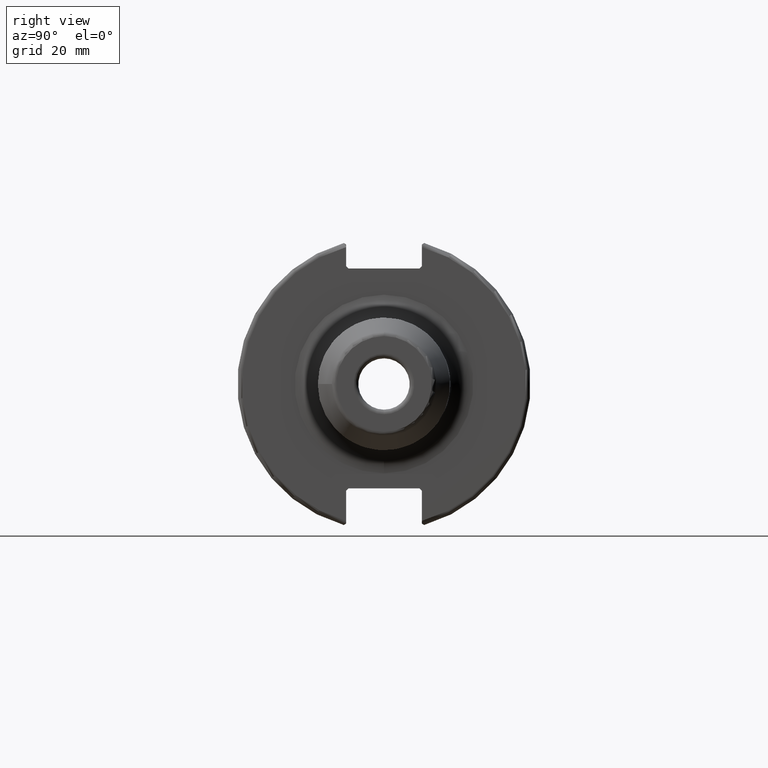
[diagram: clean part render]
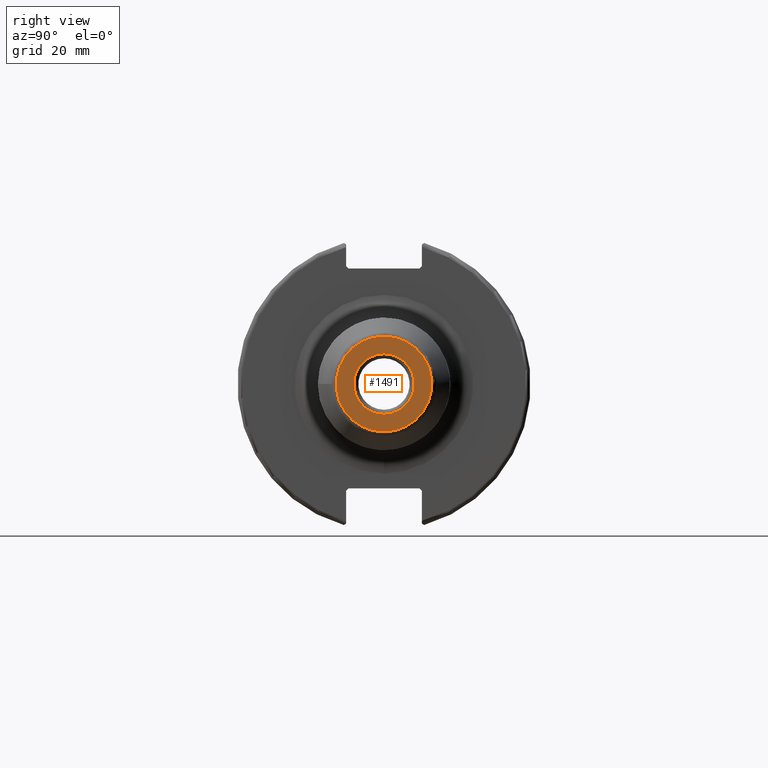
[diagram: same view with one face highlighted and labeled with its STEP entity id]
A machine part, right view. The second image highlights one B-rep face of the part: STEP entity #1491.
In plain terms, the highlighted planar face has unit normal (1, 0, 0).
Its self-contained STEP definition (entity closure, byte-faithful):
#307=FACE_BOUND('',#445,.T.);
#323=PLANE('',#1603);
#359=FACE_OUTER_BOUND('',#444,.T.);
#444=EDGE_LOOP('',(#1015));
#445=EDGE_LOOP('',(#1016));
#544=CIRCLE('',#1599,6.55625);
#548=CIRCLE('',#1604,10.3629297391925);
#619=VERTEX_POINT('',#2228);
#622=VERTEX_POINT('',#2236);
#775=EDGE_CURVE('',#619,#619,#544,.T.);
#779=EDGE_CURVE('',#622,#622,#548,.T.);
#1015=ORIENTED_EDGE('',*,*,#779,.F.);
#1016=ORIENTED_EDGE('',*,*,#775,.F.);
#1491=ADVANCED_FACE('',(#359,#307),#323,.T.);
#1599=AXIS2_PLACEMENT_3D('',#2229,#1780,#1781);
#1603=AXIS2_PLACEMENT_3D('',#2235,#1788,#1789);
#1604=AXIS2_PLACEMENT_3D('',#2237,#1790,#1791);
#1780=DIRECTION('center_axis',(1.,0.,0.));
#1781=DIRECTION('ref_axis',(0.,-1.22464679914735E-16,1.));
#1788=DIRECTION('center_axis',(1.,0.,0.));
#1789=DIRECTION('ref_axis',(0.,0.,-1.));
#1790=DIRECTION('center_axis',(-1.,0.,0.));
#1791=DIRECTION('ref_axis',(0.,-1.,1.83697019872103E-16));
#2228=CARTESIAN_POINT('',(63.5,1.60581811538197E-15,-6.55625));
#2229=CARTESIAN_POINT('Origin',(63.5,0.,0.));
#2235=CARTESIAN_POINT('Origin',(63.5,0.,0.));
#2236=CARTESIAN_POINT('',(63.5,-1.2690928734891E-15,10.3629297391925));
#2237=CARTESIAN_POINT('Origin',(63.5,0.,0.));